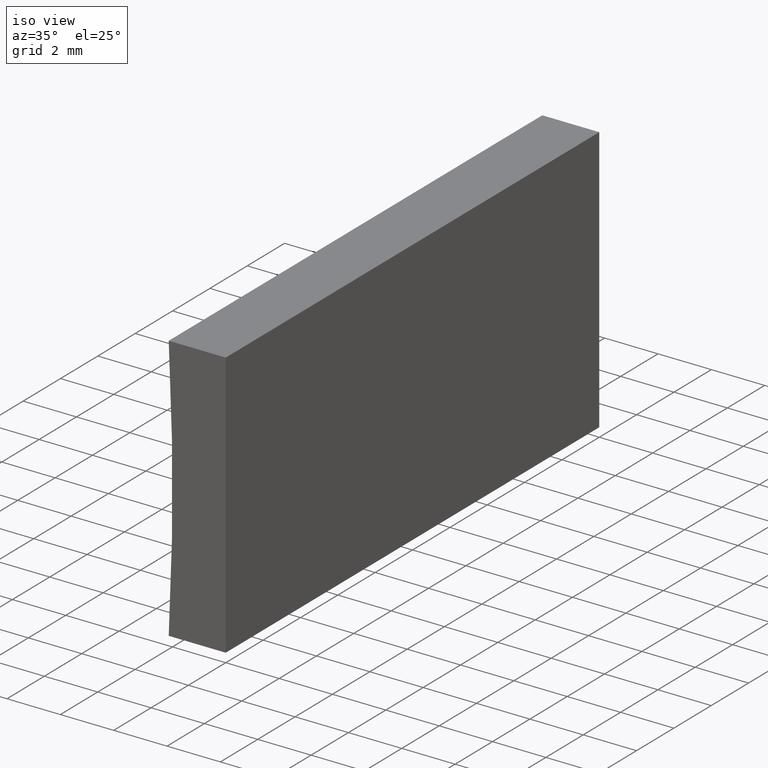
[diagram: clean part render]
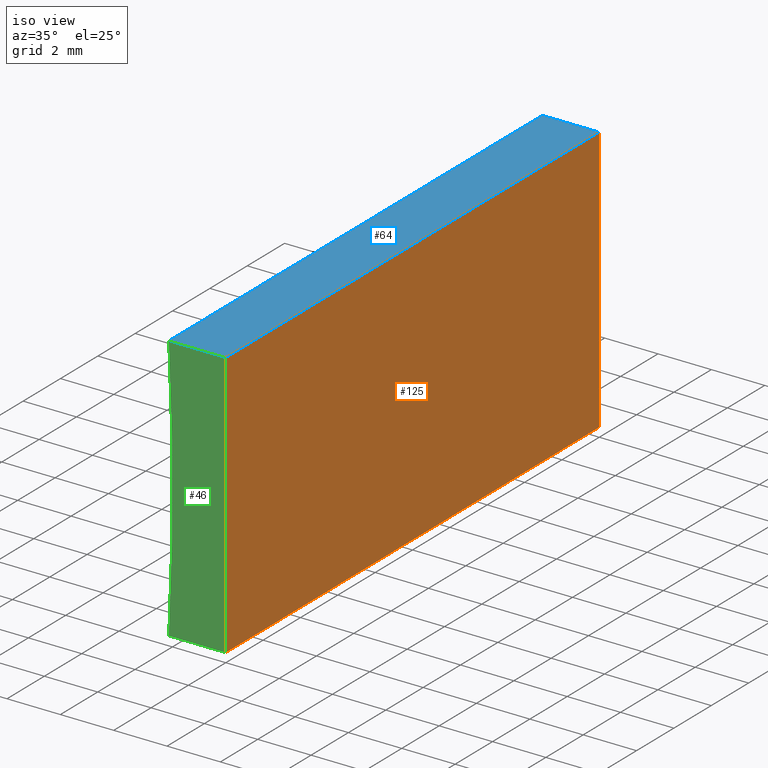
[diagram: same view with three faces highlighted in distinct colors, each labeled with its STEP entity id]
A machine part, iso view with three faces highlighted in distinct colors.
Their STEP definitions:

[orange] entity #125 — the highlighted planar face has unit normal (-1, 0, 0).
#4 = DIRECTION ( 'NONE',  ( 6.123233995736766000E-017, 0.0000000000000000000, 1.000000000000000000 ) ) ;
#12 = VECTOR ( 'NONE', #103, 1000.000000000000000 ) ;
#16 = LINE ( 'NONE', #195, #12 ) ;
#18 = EDGE_CURVE ( 'NONE', #28, #42, #16, .T. ) ;
#23 = DIRECTION ( 'NONE',  ( -6.123233995736766000E-017, -0.0000000000000000000, -1.000000000000000000 ) ) ;
#26 = FACE_OUTER_BOUND ( 'NONE', #165, .T. ) ;
#28 = VERTEX_POINT ( 'NONE', #149 ) ;
#29 = EDGE_CURVE ( 'NONE', #28, #48, #134, .T. ) ;
#36 = VECTOR ( 'NONE', #63, 1000.000000000000000 ) ;
#40 = CARTESIAN_POINT ( 'NONE',  ( 0.0000000000000000000, 20.00000000000000000, 0.0000000000000000000 ) ) ;
#42 = VERTEX_POINT ( 'NONE', #55 ) ;
#43 = CARTESIAN_POINT ( 'NONE',  ( 0.0000000000000000000, 20.00000000000000000, 0.0000000000000000000 ) ) ;
#44 = EDGE_CURVE ( 'NONE', #42, #155, #81, .T. ) ;
#48 = VERTEX_POINT ( 'NONE', #181 ) ;
#53 = DIRECTION ( 'NONE',  ( -0.0000000000000000000, -1.000000000000000000, -0.0000000000000000000 ) ) ;
#55 = CARTESIAN_POINT ( 'NONE',  ( 6.123233995736766300E-016, 0.0000000000000000000, 10.00000000000000000 ) ) ;
#60 = ORIENTED_EDGE ( 'NONE', *, *, #29, .F. ) ;
#63 = DIRECTION ( 'NONE',  ( -6.123233995736766000E-017, -0.0000000000000000000, -1.000000000000000000 ) ) ;
#81 = LINE ( 'NONE', #193, #36 ) ;
#91 = VECTOR ( 'NONE', #23, 1000.000000000000000 ) ;
#103 = DIRECTION ( 'NONE',  ( -0.0000000000000000000, -1.000000000000000000, -0.0000000000000000000 ) ) ;
#119 = DIRECTION ( 'NONE',  ( -1.000000000000000000, 0.0000000000000000000, 6.123233995736766000E-017 ) ) ;
#125 = ADVANCED_FACE ( 'NONE', ( #26 ), #132, .F. ) ;
#131 = CARTESIAN_POINT ( 'NONE',  ( 0.0000000000000000000, 20.00000000000000000, 0.0000000000000000000 ) ) ;
#132 = PLANE ( 'NONE',  #198 ) ;
#134 = LINE ( 'NONE', #43, #91 ) ;
#140 = VECTOR ( 'NONE', #53, 1000.000000000000000 ) ;
#145 = CARTESIAN_POINT ( 'NONE',  ( 0.0000000000000000000, 0.0000000000000000000, 0.0000000000000000000 ) ) ;
#149 = CARTESIAN_POINT ( 'NONE',  ( 6.123233995736766300E-016, 20.00000000000000000, 10.00000000000000000 ) ) ;
#150 = ORIENTED_EDGE ( 'NONE', *, *, #44, .T. ) ;
#155 = VERTEX_POINT ( 'NONE', #145 ) ;
#165 = EDGE_LOOP ( 'NONE', ( #150, #178, #60, #196 ) ) ;
#178 = ORIENTED_EDGE ( 'NONE', *, *, #200, .F. ) ;
#181 = CARTESIAN_POINT ( 'NONE',  ( 0.0000000000000000000, 20.00000000000000000, 0.0000000000000000000 ) ) ;
#183 = LINE ( 'NONE', #131, #140 ) ;
#193 = CARTESIAN_POINT ( 'NONE',  ( 0.0000000000000000000, 0.0000000000000000000, 0.0000000000000000000 ) ) ;
#195 = CARTESIAN_POINT ( 'NONE',  ( 6.123233995736766300E-016, 20.00000000000000000, 10.00000000000000000 ) ) ;
#196 = ORIENTED_EDGE ( 'NONE', *, *, #18, .T. ) ;
#198 = AXIS2_PLACEMENT_3D ( 'NONE', #40, #119, #4 ) ;
#200 = EDGE_CURVE ( 'NONE', #48, #155, #183, .T. ) ;

[blue] entity #64 — the highlighted planar face has unit normal (0, 0, -1).
#11 = CARTESIAN_POINT ( 'NONE',  ( 6.123233995736766300E-016, 20.00000000000000000, 10.00000000000000000 ) ) ;
#12 = VECTOR ( 'NONE', #103, 1000.000000000000000 ) ;
#16 = LINE ( 'NONE', #195, #12 ) ;
#18 = EDGE_CURVE ( 'NONE', #28, #42, #16, .T. ) ;
#28 = VERTEX_POINT ( 'NONE', #149 ) ;
#31 = VECTOR ( 'NONE', #74, 1000.000000000000000 ) ;
#42 = VERTEX_POINT ( 'NONE', #55 ) ;
#52 = EDGE_CURVE ( 'NONE', #108, #148, #122, .T. ) ;
#54 = CARTESIAN_POINT ( 'NONE',  ( 6.123233995736766300E-016, 0.0000000000000000000, 10.00000000000000000 ) ) ;
#55 = CARTESIAN_POINT ( 'NONE',  ( 6.123233995736766300E-016, 0.0000000000000000000, 10.00000000000000000 ) ) ;
#64 = ADVANCED_FACE ( 'NONE', ( #79 ), #194, .F. ) ;
#65 = LINE ( 'NONE', #169, #107 ) ;
#67 = ORIENTED_EDGE ( 'NONE', *, *, #184, .F. ) ;
#70 = DIRECTION ( 'NONE',  ( 1.000000000000000000, -0.0000000000000000000, 8.119784972569433800E-016 ) ) ;
#74 = DIRECTION ( 'NONE',  ( 1.000000000000000000, -0.0000000000000000000, 8.119784972569433800E-016 ) ) ;
#75 = DIRECTION ( 'NONE',  ( -1.000000000000000000, 0.0000000000000000000, -8.119784972569434800E-016 ) ) ;
#79 = FACE_OUTER_BOUND ( 'NONE', #144, .T. ) ;
#82 = ORIENTED_EDGE ( 'NONE', *, *, #18, .F. ) ;
#93 = EDGE_CURVE ( 'NONE', #148, #42, #189, .T. ) ;
#103 = DIRECTION ( 'NONE',  ( -0.0000000000000000000, -1.000000000000000000, -0.0000000000000000000 ) ) ;
#107 = VECTOR ( 'NONE', #70, 1000.000000000000000 ) ;
#108 = VERTEX_POINT ( 'NONE', #147 ) ;
#118 = VECTOR ( 'NONE', #135, 1000.000000000000000 ) ;
#122 = LINE ( 'NONE', #202, #118 ) ;
#123 = ORIENTED_EDGE ( 'NONE', *, *, #52, .T. ) ;
#135 = DIRECTION ( 'NONE',  ( -0.0000000000000000000, -1.000000000000000000, -0.0000000000000000000 ) ) ;
#144 = EDGE_LOOP ( 'NONE', ( #191, #82, #67, #123 ) ) ;
#147 = CARTESIAN_POINT ( 'NONE',  ( -2.136415535432422800, 20.00000000000000000, 9.999999999999998200 ) ) ;
#148 = VERTEX_POINT ( 'NONE', #192 ) ;
#149 = CARTESIAN_POINT ( 'NONE',  ( 6.123233995736766300E-016, 20.00000000000000000, 10.00000000000000000 ) ) ;
#169 = CARTESIAN_POINT ( 'NONE',  ( 6.123233995736766300E-016, 20.00000000000000000, 10.00000000000000000 ) ) ;
#170 = AXIS2_PLACEMENT_3D ( 'NONE', #11, #173, #75 ) ;
#173 = DIRECTION ( 'NONE',  ( 8.119784972569434800E-016, 0.0000000000000000000, -1.000000000000000000 ) ) ;
#184 = EDGE_CURVE ( 'NONE', #108, #28, #65, .T. ) ;
#189 = LINE ( 'NONE', #54, #31 ) ;
#191 = ORIENTED_EDGE ( 'NONE', *, *, #93, .T. ) ;
#192 = CARTESIAN_POINT ( 'NONE',  ( -2.136415535432422800, 0.0000000000000000000, 9.999999999999998200 ) ) ;
#194 = PLANE ( 'NONE',  #170 ) ;
#195 = CARTESIAN_POINT ( 'NONE',  ( 6.123233995736766300E-016, 20.00000000000000000, 10.00000000000000000 ) ) ;
#202 = CARTESIAN_POINT ( 'NONE',  ( -2.136415535432422800, 20.00000000000000000, 9.999999999999998200 ) ) ;

[green] entity #46 — the highlighted planar face has unit normal (0, 1, 0).
#9 = EDGE_CURVE ( 'NONE', #77, #148, #94, .T. ) ;
#24 = ORIENTED_EDGE ( 'NONE', *, *, #9, .F. ) ;
#27 = DIRECTION ( 'NONE',  ( -1.000000000000000000, 0.0000000000000000000, 8.119784972569430900E-016 ) ) ;
#30 = CARTESIAN_POINT ( 'NONE',  ( -93.70000000000000300, 0.0000000000000000000, 5.000000000000010700 ) ) ;
#31 = VECTOR ( 'NONE', #74, 1000.000000000000000 ) ;
#32 = EDGE_LOOP ( 'NONE', ( #104, #90, #199, #24 ) ) ;
#36 = VECTOR ( 'NONE', #63, 1000.000000000000000 ) ;
#42 = VERTEX_POINT ( 'NONE', #55 ) ;
#44 = EDGE_CURVE ( 'NONE', #42, #155, #81, .T. ) ;
#46 = ADVANCED_FACE ( 'NONE', ( #51 ), #124, .F. ) ;
#51 = FACE_OUTER_BOUND ( 'NONE', #32, .T. ) ;
#54 = CARTESIAN_POINT ( 'NONE',  ( 6.123233995736766300E-016, 0.0000000000000000000, 10.00000000000000000 ) ) ;
#55 = CARTESIAN_POINT ( 'NONE',  ( 6.123233995736766300E-016, 0.0000000000000000000, 10.00000000000000000 ) ) ;
#62 = EDGE_CURVE ( 'NONE', #155, #77, #96, .T. ) ;
#63 = DIRECTION ( 'NONE',  ( -6.123233995736766000E-017, -0.0000000000000000000, -1.000000000000000000 ) ) ;
#74 = DIRECTION ( 'NONE',  ( 1.000000000000000000, -0.0000000000000000000, 8.119784972569433800E-016 ) ) ;
#76 = DIRECTION ( 'NONE',  ( 0.0000000000000000000, 0.0000000000000000000, 1.000000000000000000 ) ) ;
#77 = VERTEX_POINT ( 'NONE', #137 ) ;
#81 = LINE ( 'NONE', #193, #36 ) ;
#84 = AXIS2_PLACEMENT_3D ( 'NONE', #88, #174, #76 ) ;
#88 = CARTESIAN_POINT ( 'NONE',  ( -93.70000000000000300, 0.0000000000000000000, 5.000000000000010700 ) ) ;
#90 = ORIENTED_EDGE ( 'NONE', *, *, #44, .F. ) ;
#93 = EDGE_CURVE ( 'NONE', #148, #42, #189, .T. ) ;
#94 = CIRCLE ( 'NONE', #84, 91.70000000000001700 ) ;
#96 = LINE ( 'NONE', #179, #197 ) ;
#104 = ORIENTED_EDGE ( 'NONE', *, *, #62, .F. ) ;
#106 = DIRECTION ( 'NONE',  ( 0.0000000000000000000, 1.000000000000000000, 0.0000000000000000000 ) ) ;
#124 = PLANE ( 'NONE',  #156 ) ;
#137 = CARTESIAN_POINT ( 'NONE',  ( -2.136415535432423200, 0.0000000000000000000, -7.806255641895631900E-015 ) ) ;
#145 = CARTESIAN_POINT ( 'NONE',  ( 0.0000000000000000000, 0.0000000000000000000, 0.0000000000000000000 ) ) ;
#148 = VERTEX_POINT ( 'NONE', #192 ) ;
#154 = DIRECTION ( 'NONE',  ( 0.0000000000000000000, -0.0000000000000000000, 1.000000000000000000 ) ) ;
#155 = VERTEX_POINT ( 'NONE', #145 ) ;
#156 = AXIS2_PLACEMENT_3D ( 'NONE', #30, #106, #154 ) ;
#174 = DIRECTION ( 'NONE',  ( -0.0000000000000000000, -1.000000000000000000, -0.0000000000000000000 ) ) ;
#179 = CARTESIAN_POINT ( 'NONE',  ( 0.0000000000000000000, 0.0000000000000000000, 0.0000000000000000000 ) ) ;
#189 = LINE ( 'NONE', #54, #31 ) ;
#192 = CARTESIAN_POINT ( 'NONE',  ( -2.136415535432422800, 0.0000000000000000000, 9.999999999999998200 ) ) ;
#193 = CARTESIAN_POINT ( 'NONE',  ( 0.0000000000000000000, 0.0000000000000000000, 0.0000000000000000000 ) ) ;
#197 = VECTOR ( 'NONE', #27, 1000.000000000000000 ) ;
#199 = ORIENTED_EDGE ( 'NONE', *, *, #93, .F. ) ;